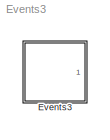
MODEL Events3
KIND model
CONFIG AbsTol = auto
CONFIG FixedStep = auto
CONFIG MaxStep = auto
CONFIG MinStep = auto
CONFIG RelTol = 1e-3
CONFIG Solver = ode45
CONFIG SolverMode = Auto
CONFIG StartTime = 0.0
CONFIG StopTime = 10.0
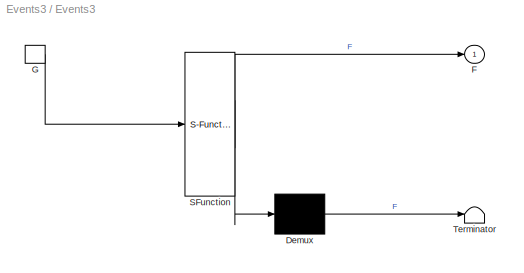
BLOCK [SubSystem] Events3
  MaskDescription = Stateflow diagram
  MaskDisplay = plot(sf('Private','sfblk','xIcon'),sf('Private','sfblk','yIcon'));text(0.5,0,sf('Private', 'sfblk', 'tIcon'),'HorizontalAl','Center','VerticalAl','Bottom');
  MaskIconFrame = off
  MaskIconOpaque = off
  MaskIconRotate = none
  MaskIconUnits = autoscale
  MaskSelfModifiable = on
  MaskType = Stateflow
  Ports = [0, 1, 0, 1]
  TreatAsAtomicUnit = off
BLOCK [Demux] Events3/ Demux 
  Outputs = 1
  Ports = [1, 1]
BLOCK [S-Function] Events3/ SFunction 
  FunctionName = sf_sfun
  PortCounts = [1 2]
  Ports = [1, 2]
  Tag = Stateflow S-Function Events3 1
BLOCK [Terminator] Events3/ Terminator 
BLOCK [Outport] Events3/F
BLOCK [TriggerPort] Events3/G
  Ports = [0, 1]
  ShowOutputPort = on
LINE Events3/ Demux :1 -> Events3/ Terminator :1
LINE Events3/ SFunction :1 -> Events3/ Demux :1
LINE Events3/ SFunction :2 -> Events3/F:1
LINE Events3/G:1 -> Events3/ SFunction :1
CHART Events3 states=6 transitions=6
  STATE_LABEL 'A'
  STATE_LABEL 'B'
  STATE_LABEL 'C'
  STATE_LABEL 'D'
  STATE_LABEL 'TOP1'
  STATE_LABEL 'TOP2'
